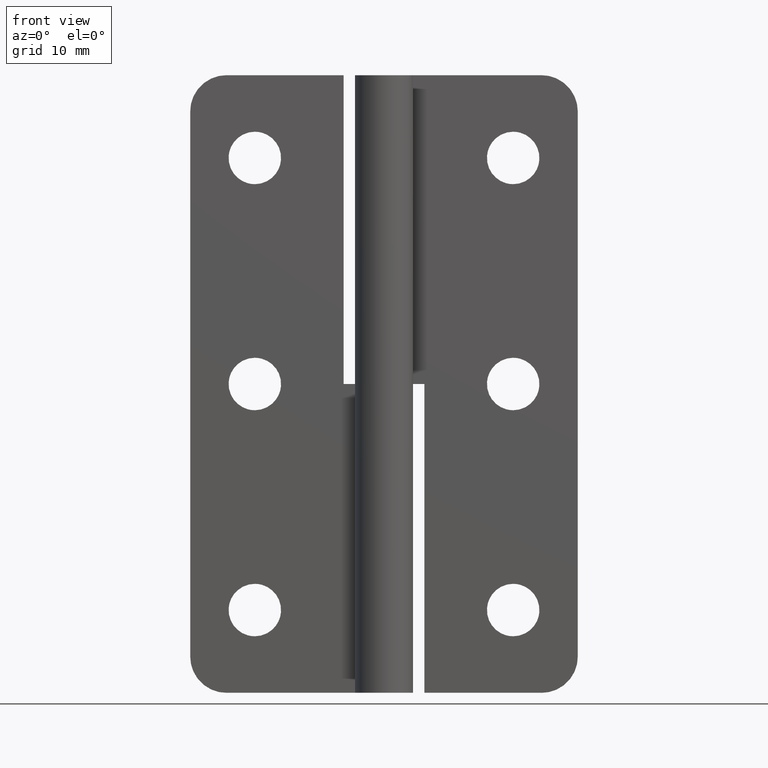
[diagram: clean part render]
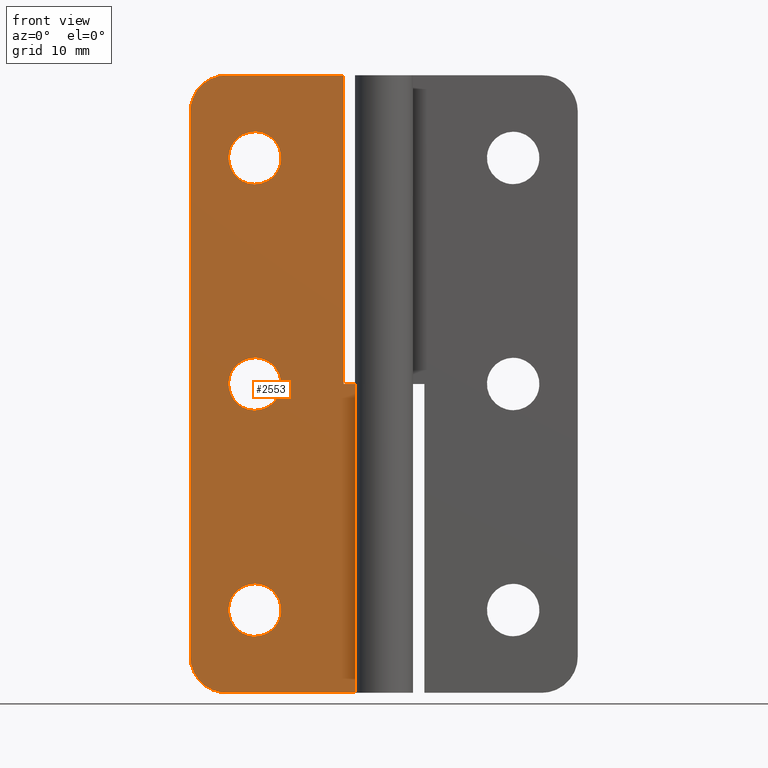
[diagram: same view with one face highlighted and labeled with its STEP entity id]
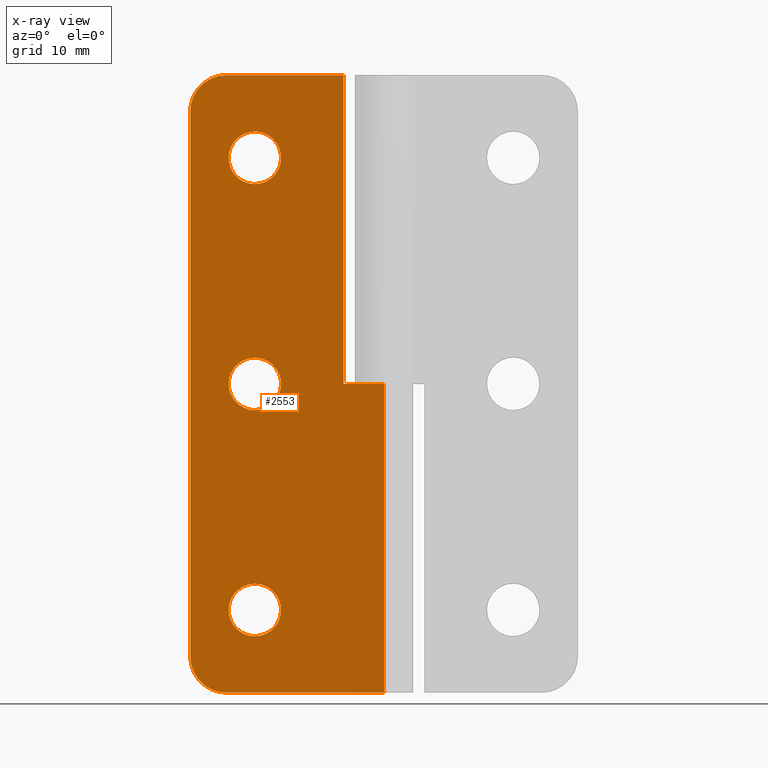
[diagram: x-ray of the same camera — body ghosted, the highlighted face saturated]
A machine part, front view. The second image highlights one B-rep face of the part: STEP entity #2553.
The next image is the same camera in x-ray: the body ghosted, the highlighted face saturated — about 0% of this face is hidden behind the body in this view.
In plain terms, the highlighted face is a freeform B-spline surface patch.
Its self-contained STEP definition (entity closure, byte-faithful):
#1568=CARTESIAN_POINT('',(-12.760018665374171,2.000004000000000,65.995007938797741));
#1569=VERTEX_POINT('',#1568);
#1575=CARTESIAN_POINT('',(-16.0,2.000004000000000,69.500000000000000));
#1576=VERTEX_POINT('',#1575);
#1577=CARTESIAN_POINT('',(-12.760018665374169,2.000004000000001,65.995007938797755));
#1578=CARTESIAN_POINT('',(-12.750000000000002,2.000004000000001,66.122307152137921));
#1579=CARTESIAN_POINT('',(-12.750000000000000,2.000004000000000,66.250000000000000));
#1580=CARTESIAN_POINT('',(-12.750000000000002,2.000004000000001,69.500000000000000));
#1581=CARTESIAN_POINT('',(-16.0,2.000004000000000,69.500000000000000));
#1589=(BOUNDED_CURVE()B_SPLINE_CURVE(2,(#1577,#1578,#1579,#1580,#1581),.UNSPECIFIED.,.F.,.U.)B_SPLINE_CURVE_WITH_KNOTS((3,2,3),(0.736331300623586,0.750000000000000,1.0),.UNSPECIFIED.)CURVE()GEOMETRIC_REPRESENTATION_ITEM()RATIONAL_B_SPLINE_CURVE((0.969723356152656,0.983986122570595,1.0,0.707106781186547,1.0))REPRESENTATION_ITEM(''));
#1590=EDGE_CURVE('',#1569,#1576,#1589,.T.);
#1592=CARTESIAN_POINT('',(-19.239981334625838,2.000004000000000,66.504992061202245));
#1593=VERTEX_POINT('',#1592);
#1594=CARTESIAN_POINT('',(-16.0,2.000004000000000,69.500000000000000));
#1595=CARTESIAN_POINT('',(-19.004269097727793,2.000004000000000,69.500000000000000));
#1596=CARTESIAN_POINT('',(-19.239981334625842,2.000004000000001,66.504992061202245));
#1604=(BOUNDED_CURVE()B_SPLINE_CURVE(2,(#1594,#1595,#1596),.UNSPECIFIED.,.F.,.U.)B_SPLINE_CURVE_WITH_KNOTS((3,3),(0.0,0.236331300623587),.UNSPECIFIED.)CURVE()GEOMETRIC_REPRESENTATION_ITEM()RATIONAL_B_SPLINE_CURVE((1.0,0.723120658615952,0.969723356152657))REPRESENTATION_ITEM(''));
#1605=EDGE_CURVE('',#1576,#1593,#1604,.T.);
#1651=CARTESIAN_POINT('',(-16.0,2.000004000000000,63.0));
#1652=VERTEX_POINT('',#1651);
#1653=CARTESIAN_POINT('',(-19.239981334625838,2.000004000000000,66.504992061202245));
#1654=CARTESIAN_POINT('',(-19.250000000000000,2.000004000000000,66.377692847862079));
#1655=CARTESIAN_POINT('',(-19.250000000000000,2.000004000000000,66.250000000000000));
#1656=CARTESIAN_POINT('',(-19.250000000000000,2.000004000000001,63.0));
#1657=CARTESIAN_POINT('',(-16.0,2.000004000000000,63.0));
#1665=(BOUNDED_CURVE()B_SPLINE_CURVE(2,(#1653,#1654,#1655,#1656,#1657),.UNSPECIFIED.,.F.,.U.)B_SPLINE_CURVE_WITH_KNOTS((3,2,3),(0.236331300623587,0.250000000000000,0.500000000000000),.UNSPECIFIED.)CURVE()GEOMETRIC_REPRESENTATION_ITEM()RATIONAL_B_SPLINE_CURVE((0.969723356152658,0.983986122570596,1.0,0.707106781186547,1.0))REPRESENTATION_ITEM(''));
#1666=EDGE_CURVE('',#1593,#1652,#1665,.T.);
#1668=CARTESIAN_POINT('',(-16.0,2.000004000000000,63.0));
#1669=CARTESIAN_POINT('',(-12.995730902272211,2.000004000000000,63.000000000000007));
#1670=CARTESIAN_POINT('',(-12.760018665374171,2.000004000000000,65.995007938797755));
#1678=(BOUNDED_CURVE()B_SPLINE_CURVE(2,(#1668,#1669,#1670),.UNSPECIFIED.,.F.,.U.)B_SPLINE_CURVE_WITH_KNOTS((3,3),(0.500000000000000,0.736331300623587),.UNSPECIFIED.)CURVE()GEOMETRIC_REPRESENTATION_ITEM()RATIONAL_B_SPLINE_CURVE((1.0,0.723120658615952,0.969723356152657))REPRESENTATION_ITEM(''));
#1679=EDGE_CURVE('',#1652,#1569,#1678,.T.);
#1750=CARTESIAN_POINT('',(-12.760018665374171,2.000004000000000,37.995007938797762));
#1751=VERTEX_POINT('',#1750);
#1757=CARTESIAN_POINT('',(-16.0,2.000004000000000,41.500000000000000));
#1758=VERTEX_POINT('',#1757);
#1759=CARTESIAN_POINT('',(-12.760018665374162,2.000004000000000,37.995007938797755));
#1760=CARTESIAN_POINT('',(-12.750000000000007,2.000004000000000,38.122307152137928));
#1761=CARTESIAN_POINT('',(-12.750000000000000,2.000004000000000,38.250000000000000));
#1762=CARTESIAN_POINT('',(-12.750000000000002,2.000004000000001,41.500000000000000));
#1763=CARTESIAN_POINT('',(-16.0,2.000004000000000,41.500000000000000));
#1771=(BOUNDED_CURVE()B_SPLINE_CURVE(2,(#1759,#1760,#1761,#1762,#1763),.UNSPECIFIED.,.F.,.U.)B_SPLINE_CURVE_WITH_KNOTS((3,2,3),(0.736331300623587,0.750000000000000,1.0),.UNSPECIFIED.)CURVE()GEOMETRIC_REPRESENTATION_ITEM()RATIONAL_B_SPLINE_CURVE((0.969723356152659,0.983986122570596,1.0,0.707106781186547,1.0))REPRESENTATION_ITEM(''));
#1772=EDGE_CURVE('',#1751,#1758,#1771,.T.);
#1774=CARTESIAN_POINT('',(-19.239981334625838,2.000004000000000,38.504992061202252));
#1775=VERTEX_POINT('',#1774);
#1776=CARTESIAN_POINT('',(-16.0,2.000004000000000,41.500000000000000));
#1777=CARTESIAN_POINT('',(-19.004269097727803,2.000004000000000,41.500000000000000));
#1778=CARTESIAN_POINT('',(-19.239981334625838,2.000004000000000,38.504992061202245));
#1786=(BOUNDED_CURVE()B_SPLINE_CURVE(2,(#1776,#1777,#1778),.UNSPECIFIED.,.F.,.U.)B_SPLINE_CURVE_WITH_KNOTS((3,3),(0.0,0.236331300623587),.UNSPECIFIED.)CURVE()GEOMETRIC_REPRESENTATION_ITEM()RATIONAL_B_SPLINE_CURVE((1.0,0.723120658615951,0.969723356152658))REPRESENTATION_ITEM(''));
#1787=EDGE_CURVE('',#1758,#1775,#1786,.T.);
#1833=CARTESIAN_POINT('',(-16.0,2.000004000000000,34.999999999999993));
#1834=VERTEX_POINT('',#1833);
#1835=CARTESIAN_POINT('',(-19.239981334625838,2.000004000000000,38.504992061202245));
#1836=CARTESIAN_POINT('',(-19.249999999999993,2.000004000000001,38.377692847862086));
#1837=CARTESIAN_POINT('',(-19.250000000000000,2.000004000000000,38.250000000000000));
#1838=CARTESIAN_POINT('',(-19.250000000000000,2.000004000000001,35.0));
#1839=CARTESIAN_POINT('',(-16.0,2.000004000000000,34.999999999999993));
#1847=(BOUNDED_CURVE()B_SPLINE_CURVE(2,(#1835,#1836,#1837,#1838,#1839),.UNSPECIFIED.,.F.,.U.)B_SPLINE_CURVE_WITH_KNOTS((3,2,3),(0.236331300623587,0.250000000000000,0.500000000000000),.UNSPECIFIED.)CURVE()GEOMETRIC_REPRESENTATION_ITEM()RATIONAL_B_SPLINE_CURVE((0.969723356152658,0.983986122570596,1.0,0.707106781186547,1.0))REPRESENTATION_ITEM(''));
#1848=EDGE_CURVE('',#1775,#1834,#1847,.T.);
#1850=CARTESIAN_POINT('',(-16.0,2.000004000000000,34.999999999999993));
#1851=CARTESIAN_POINT('',(-12.995730902272211,2.000004000000000,34.999999999999993));
#1852=CARTESIAN_POINT('',(-12.760018665374171,2.000004000000000,37.995007938797755));
#1860=(BOUNDED_CURVE()B_SPLINE_CURVE(2,(#1850,#1851,#1852),.UNSPECIFIED.,.F.,.U.)B_SPLINE_CURVE_WITH_KNOTS((3,3),(0.500000000000000,0.736331300623587),.UNSPECIFIED.)CURVE()GEOMETRIC_REPRESENTATION_ITEM()RATIONAL_B_SPLINE_CURVE((1.0,0.723120658615952,0.969723356152657))REPRESENTATION_ITEM(''));
#1861=EDGE_CURVE('',#1834,#1751,#1860,.T.);
#1932=CARTESIAN_POINT('',(-12.760018665374160,2.000004000000000,9.995007938797752));
#1933=VERTEX_POINT('',#1932);
#1939=CARTESIAN_POINT('',(-16.0,2.000004000000000,13.500000000000000));
#1940=VERTEX_POINT('',#1939);
#1941=CARTESIAN_POINT('',(-12.760018665374165,2.000004000000000,9.995007938797752));
#1942=CARTESIAN_POINT('',(-12.750000000000004,2.000004000000000,10.122307152137919));
#1943=CARTESIAN_POINT('',(-12.750000000000000,2.000004000000000,10.250000000000000));
#1944=CARTESIAN_POINT('',(-12.750000000000002,2.000004000000001,13.500000000000000));
#1945=CARTESIAN_POINT('',(-16.0,2.000004000000000,13.500000000000000));
#1953=(BOUNDED_CURVE()B_SPLINE_CURVE(2,(#1941,#1942,#1943,#1944,#1945),.UNSPECIFIED.,.F.,.U.)B_SPLINE_CURVE_WITH_KNOTS((3,2,3),(0.736331300623587,0.750000000000000,1.0),.UNSPECIFIED.)CURVE()GEOMETRIC_REPRESENTATION_ITEM()RATIONAL_B_SPLINE_CURVE((0.969723356152658,0.983986122570596,1.0,0.707106781186547,1.0))REPRESENTATION_ITEM(''));
#1954=EDGE_CURVE('',#1933,#1940,#1953,.T.);
#1956=CARTESIAN_POINT('',(-19.239981334625838,2.000004000000000,10.504992061202250));
#1957=VERTEX_POINT('',#1956);
#1958=CARTESIAN_POINT('',(-16.0,2.000004000000000,13.500000000000000));
#1959=CARTESIAN_POINT('',(-19.004269097727789,2.000004000000000,13.499999999999998));
#1960=CARTESIAN_POINT('',(-19.239981334625835,2.000004000000000,10.504992061202252));
#1968=(BOUNDED_CURVE()B_SPLINE_CURVE(2,(#1958,#1959,#1960),.UNSPECIFIED.,.F.,.U.)B_SPLINE_CURVE_WITH_KNOTS((3,3),(0.0,0.236331300623587),.UNSPECIFIED.)CURVE()GEOMETRIC_REPRESENTATION_ITEM()RATIONAL_B_SPLINE_CURVE((1.0,0.723120658615952,0.969723356152657))REPRESENTATION_ITEM(''));
#1969=EDGE_CURVE('',#1940,#1957,#1968,.T.);
#2015=CARTESIAN_POINT('',(-16.0,2.000004000000000,7.000000000000001));
#2016=VERTEX_POINT('',#2015);
#2017=CARTESIAN_POINT('',(-19.239981334625842,2.000004000000001,10.504992061202252));
#2018=CARTESIAN_POINT('',(-19.250000000000004,2.000004000000000,10.377692847862079));
#2019=CARTESIAN_POINT('',(-19.250000000000000,2.000004000000000,10.250000000000000));
#2020=CARTESIAN_POINT('',(-19.250000000000000,2.000004000000001,7.000000000000002));
#2021=CARTESIAN_POINT('',(-16.0,2.000004000000000,7.000000000000001));
#2029=(BOUNDED_CURVE()B_SPLINE_CURVE(2,(#2017,#2018,#2019,#2020,#2021),.UNSPECIFIED.,.F.,.U.)B_SPLINE_CURVE_WITH_KNOTS((3,2,3),(0.236331300623587,0.250000000000000,0.500000000000000),.UNSPECIFIED.)CURVE()GEOMETRIC_REPRESENTATION_ITEM()RATIONAL_B_SPLINE_CURVE((0.969723356152657,0.983986122570596,1.0,0.707106781186547,1.0))REPRESENTATION_ITEM(''));
#2030=EDGE_CURVE('',#1957,#2016,#2029,.T.);
#2032=CARTESIAN_POINT('',(-16.0,2.000004000000000,7.000000000000001));
#2033=CARTESIAN_POINT('',(-12.995730902272211,2.000004000000000,7.000000000000002));
#2034=CARTESIAN_POINT('',(-12.760018665374160,2.000004000000000,9.995007938797752));
#2042=(BOUNDED_CURVE()B_SPLINE_CURVE(2,(#2032,#2033,#2034),.UNSPECIFIED.,.F.,.U.)B_SPLINE_CURVE_WITH_KNOTS((3,3),(0.500000000000000,0.736331300623587),.UNSPECIFIED.)CURVE()GEOMETRIC_REPRESENTATION_ITEM()RATIONAL_B_SPLINE_CURVE((1.0,0.723120658615952,0.969723356152657))REPRESENTATION_ITEM(''));
#2043=EDGE_CURVE('',#2016,#1933,#2042,.T.);
#2067=CARTESIAN_POINT('',(-5.0,2.000004000000000,76.500000000000000));
#2068=VERTEX_POINT('',#2067);
#2069=CARTESIAN_POINT('',(-5.0,2.000004000000000,38.250000000000000));
#2070=VERTEX_POINT('',#2069);
#2071=CARTESIAN_POINT('',(-5.0,2.000004000000000,76.500000000000000));
#2072=CARTESIAN_POINT('',(-5.0,2.000004000000000,38.250000000000000));
#2073=QUASI_UNIFORM_CURVE('',1,(#2071,#2072),.UNSPECIFIED.,.F.,.U.);
#2074=EDGE_CURVE('',#2068,#2070,#2073,.T.);
#2103=CARTESIAN_POINT('',(0.0,2.000004000000000,38.250000000000000));
#2104=VERTEX_POINT('',#2103);
#2105=CARTESIAN_POINT('',(-5.0,2.000004000000000,38.250000000000000));
#2106=CARTESIAN_POINT('',(0.0,2.000004000000000,38.250000000000000));
#2107=QUASI_UNIFORM_CURVE('',1,(#2105,#2106),.UNSPECIFIED.,.F.,.U.);
#2108=EDGE_CURVE('',#2070,#2104,#2107,.T.);
#2199=CARTESIAN_POINT('',(-19.500000000000000,2.000004000000000,0.0));
#2200=VERTEX_POINT('',#2199);
#2206=CARTESIAN_POINT('',(-24.0,2.000004000000000,4.499999999999949));
#2207=VERTEX_POINT('',#2206);
#2208=CARTESIAN_POINT('',(-24.0,2.000004000000000,4.499999999999949));
#2209=CARTESIAN_POINT('',(-24.0,2.000004000000001,-5.030698E-014));
#2210=CARTESIAN_POINT('',(-19.500000000000000,2.000004000000000,-5.030698E-014));
#2218=(BOUNDED_CURVE()B_SPLINE_CURVE(2,(#2208,#2209,#2210),.UNSPECIFIED.,.F.,.U.)CURVE()GEOMETRIC_REPRESENTATION_ITEM()QUASI_UNIFORM_CURVE()RATIONAL_B_SPLINE_CURVE((1.0,0.707106781186547,1.0))REPRESENTATION_ITEM(''));
#2219=EDGE_CURVE('',#2207,#2200,#2218,.T.);
#2260=CARTESIAN_POINT('',(-24.0,2.000004000000000,72.0));
#2261=VERTEX_POINT('',#2260);
#2267=CARTESIAN_POINT('',(-19.500000000000000,2.000004000000000,76.500000000000000));
#2268=VERTEX_POINT('',#2267);
#2269=CARTESIAN_POINT('',(-19.500000000000000,2.000004000000000,76.500000000000000));
#2270=CARTESIAN_POINT('',(-24.0,2.000004000000001,76.500000000000000));
#2271=CARTESIAN_POINT('',(-24.0,2.000004000000000,72.0));
#2279=(BOUNDED_CURVE()B_SPLINE_CURVE(2,(#2269,#2270,#2271),.UNSPECIFIED.,.F.,.U.)CURVE()GEOMETRIC_REPRESENTATION_ITEM()QUASI_UNIFORM_CURVE()RATIONAL_B_SPLINE_CURVE((1.0,0.707106781186547,1.0))REPRESENTATION_ITEM(''));
#2280=EDGE_CURVE('',#2268,#2261,#2279,.T.);
#2295=CARTESIAN_POINT('',(-19.500000000000000,2.000004000000000,76.500000000000000));
#2296=CARTESIAN_POINT('',(-5.0,2.000004000000000,76.500000000000000));
#2297=QUASI_UNIFORM_CURVE('',1,(#2295,#2296),.UNSPECIFIED.,.F.,.U.);
#2298=EDGE_CURVE('',#2268,#2068,#2297,.T.);
#2315=CARTESIAN_POINT('',(0.0,2.000004000000000,0.0));
#2316=VERTEX_POINT('',#2315);
#2317=CARTESIAN_POINT('',(-19.500000000000000,2.000004000000000,0.0));
#2318=CARTESIAN_POINT('',(0.0,2.000004000000000,0.0));
#2319=QUASI_UNIFORM_CURVE('',1,(#2317,#2318),.UNSPECIFIED.,.F.,.U.);
#2320=EDGE_CURVE('',#2200,#2316,#2319,.T.);
#2456=CARTESIAN_POINT('',(0.0,2.000004000000000,0.0));
#2457=CARTESIAN_POINT('',(0.0,2.000004000000000,38.250000000000000));
#2458=QUASI_UNIFORM_CURVE('',1,(#2456,#2457),.UNSPECIFIED.,.F.,.U.);
#2459=EDGE_CURVE('',#2316,#2104,#2458,.T.);
#2477=CARTESIAN_POINT('',(-24.0,2.000004000000000,4.499999999999949));
#2478=CARTESIAN_POINT('',(-24.0,2.000004000000000,72.0));
#2479=QUASI_UNIFORM_CURVE('',1,(#2477,#2478),.UNSPECIFIED.,.F.,.U.);
#2480=EDGE_CURVE('',#2207,#2261,#2479,.T.);
#2520=CARTESIAN_POINT('',(-25.198799953483348,2.000004000000000,80.321174851728173));
#2521=CARTESIAN_POINT('',(-25.198799953483348,2.000004000000000,-3.821176903618050));
#2522=CARTESIAN_POINT('',(1.198800597213505,2.000004000000000,80.321174851728173));
#2523=CARTESIAN_POINT('',(1.198800597213505,2.000004000000000,-3.821176903618050));
#2524=B_SPLINE_SURFACE_WITH_KNOTS('',1,1,((#2520,#2522),(#2521,#2523)),.UNSPECIFIED.,.F.,.F.,.U.,(2,2),(2,2),(0.0,84.142351755346226),(0.0,26.397600550696851),.UNSPECIFIED.);
#2525=ORIENTED_EDGE('',*,*,#2108,.F.);
#2526=ORIENTED_EDGE('',*,*,#2074,.F.);
#2527=ORIENTED_EDGE('',*,*,#2298,.F.);
#2528=ORIENTED_EDGE('',*,*,#2280,.T.);
#2529=ORIENTED_EDGE('',*,*,#2480,.F.);
#2530=ORIENTED_EDGE('',*,*,#2219,.T.);
#2531=ORIENTED_EDGE('',*,*,#2320,.T.);
#2532=ORIENTED_EDGE('',*,*,#2459,.T.);
#2533=EDGE_LOOP('',(#2525,#2526,#2527,#2528,#2529,#2530,#2531,#2532));
#2534=FACE_OUTER_BOUND('',#2533,.T.);
#2535=ORIENTED_EDGE('',*,*,#2043,.F.);
#2536=ORIENTED_EDGE('',*,*,#2030,.F.);
#2537=ORIENTED_EDGE('',*,*,#1969,.F.);
#2538=ORIENTED_EDGE('',*,*,#1954,.F.);
#2539=EDGE_LOOP('',(#2535,#2536,#2537,#2538));
#2540=FACE_BOUND('',#2539,.T.);
#2541=ORIENTED_EDGE('',*,*,#1861,.F.);
#2542=ORIENTED_EDGE('',*,*,#1848,.F.);
#2543=ORIENTED_EDGE('',*,*,#1787,.F.);
#2544=ORIENTED_EDGE('',*,*,#1772,.F.);
#2545=EDGE_LOOP('',(#2541,#2542,#2543,#2544));
#2546=FACE_BOUND('',#2545,.T.);
#2547=ORIENTED_EDGE('',*,*,#1679,.F.);
#2548=ORIENTED_EDGE('',*,*,#1666,.F.);
#2549=ORIENTED_EDGE('',*,*,#1605,.F.);
#2550=ORIENTED_EDGE('',*,*,#1590,.F.);
#2551=EDGE_LOOP('',(#2547,#2548,#2549,#2550));
#2552=FACE_BOUND('',#2551,.T.);
#2553=ADVANCED_FACE('',(#2534,#2540,#2546,#2552),#2524,.T.);